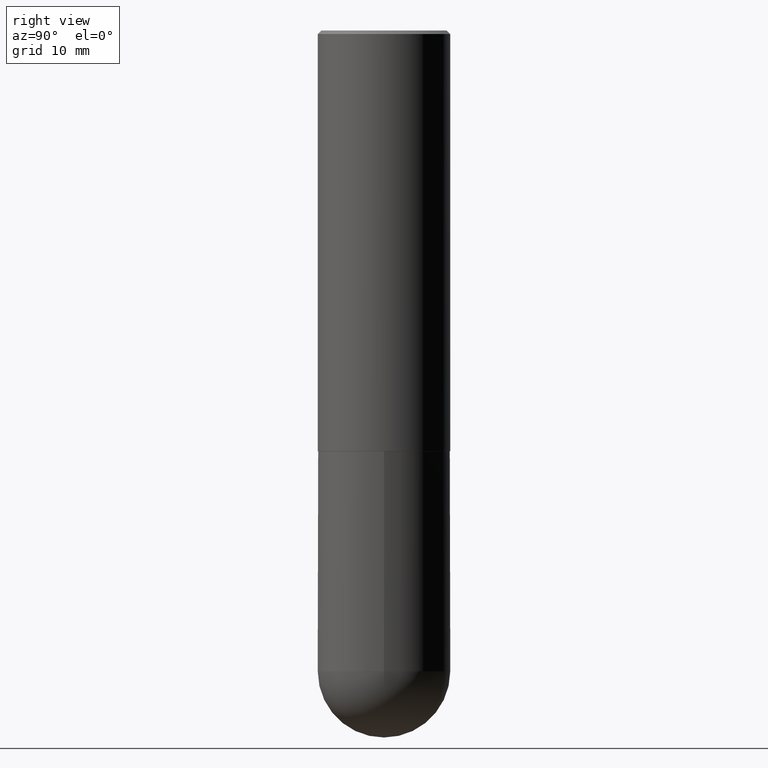
[diagram: clean part render]
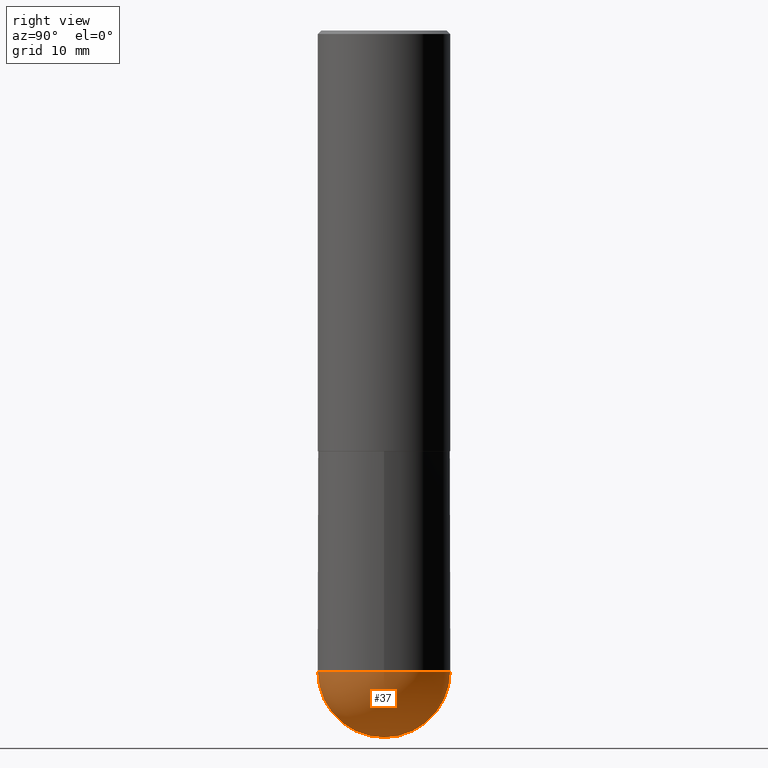
[diagram: same view with one face highlighted and labeled with its STEP entity id]
A machine part, right view. The second image highlights one B-rep face of the part: STEP entity #37.
In plain terms, the highlighted spherical surface has radius 9.525 mm.
Its self-contained STEP definition (entity closure, byte-faithful):
#11 = ORIENTED_EDGE ( 'NONE', *, *, #111, .F. ) ;
#13 = CIRCLE ( 'NONE', #322, 0.3750000000000001110 ) ;
#26 = DIRECTION ( 'NONE',  ( -7.105427357600999492E-15, -1.000000000000000000, 0.000000000000000000 ) ) ;
#28 = AXIS2_PLACEMENT_3D ( 'NONE', #184, #29, #26 ) ;
#29 = DIRECTION ( 'NONE',  ( -1.000000000000000000, 7.105427357601001070E-15, -4.926315508542082329E-29 ) ) ;
#33 = CARTESIAN_POINT ( 'NONE',  ( 9.466789814748773816E-29, -1.441714559602862136E-14, -4.000000000000000000 ) ) ;
#37 = ADVANCED_FACE ( 'NONE', ( #114 ), #384, .T. ) ;
#44 = ORIENTED_EDGE ( 'NONE', *, *, #210, .T. ) ;
#45 = EDGE_CURVE ( 'NONE', #62, #274, #204, .T. ) ;
#62 = VERTEX_POINT ( 'NONE', #80 ) ;
#65 = AXIS2_PLACEMENT_3D ( 'NONE', #290, #336, #196 ) ;
#69 = DIRECTION ( 'NONE',  ( -2.445468806185136597E-29, 3.491481338843145583E-15, 1.000000000000000000 ) ) ;
#75 = CARTESIAN_POINT ( 'NONE',  ( 8.533704644507233916E-29, -1.313080222144645289E-14, -3.624999999999999556 ) ) ;
#80 = CARTESIAN_POINT ( 'NONE',  ( 0.3750000000000001110, -1.310178372400889468E-14, -3.624999999999999556 ) ) ;
#83 = DIRECTION ( 'NONE',  ( -2.445468806185136597E-29, 3.491481338843145583E-15, 1.000000000000000000 ) ) ;
#106 = CARTESIAN_POINT ( 'NONE',  ( 2.618611004132438763E-15, 0.3749999999999873990, -3.625000000000000888 ) ) ;
#111 = EDGE_CURVE ( 'NONE', #367, #62, #13, .T. ) ;
#112 = CARTESIAN_POINT ( 'NONE',  ( 8.864824422421120163E-29, -1.265661985330640259E-14, -3.624999999999999556 ) ) ;
#114 = FACE_OUTER_BOUND ( 'NONE', #395, .T. ) ;
#123 = ORIENTED_EDGE ( 'NONE', *, *, #45, .F. ) ;
#163 = VERTEX_POINT ( 'NONE', #33 ) ;
#184 = CARTESIAN_POINT ( 'NONE',  ( 8.533704644507233916E-29, -1.313080222144645289E-14, -3.624999999999999556 ) ) ;
#196 = DIRECTION ( 'NONE',  ( 6.982962677686265922E-15, 1.000000000000000000, 0.000000000000000000 ) ) ;
#204 = CIRCLE ( 'NONE', #269, 0.3750000000000001110 ) ;
#210 = EDGE_CURVE ( 'NONE', #163, #274, #227, .T. ) ;
#227 = CIRCLE ( 'NONE', #65, 0.3750000000000003886 ) ;
#235 = DIRECTION ( 'NONE',  ( 1.000000000000000000, -6.982962677686265922E-15, 0.000000000000000000 ) ) ;
#246 = DIRECTION ( 'NONE',  ( 1.000000000000000000, -6.982962677686265922E-15, 0.000000000000000000 ) ) ;
#248 = CARTESIAN_POINT ( 'NONE',  ( 8.864824422421120163E-29, -1.265661985330640259E-14, -3.624999999999999556 ) ) ;
#259 = AXIS2_PLACEMENT_3D ( 'NONE', #75, #408, #375 ) ;
#260 = ORIENTED_EDGE ( 'NONE', *, *, #386, .F. ) ;
#269 = AXIS2_PLACEMENT_3D ( 'NONE', #248, #69, #246 ) ;
#271 = CIRCLE ( 'NONE', #28, 0.3750000000000003886 ) ;
#274 = VERTEX_POINT ( 'NONE', #106 ) ;
#290 = CARTESIAN_POINT ( 'NONE',  ( 8.533704644507233916E-29, -1.313080222144645289E-14, -3.624999999999999556 ) ) ;
#309 = CARTESIAN_POINT ( 'NONE',  ( -2.664535259100290106E-15, -0.3750000000000131006, -3.624999999999998668 ) ) ;
#322 = AXIS2_PLACEMENT_3D ( 'NONE', #112, #83, #235 ) ;
#336 = DIRECTION ( 'NONE',  ( 1.000000000000000000, -6.982962677686265922E-15, 4.883557194083112340E-29 ) ) ;
#367 = VERTEX_POINT ( 'NONE', #309 ) ;
#375 = DIRECTION ( 'NONE',  ( 6.982962677686266711E-15, 1.000000000000000000, -2.913971193241878005E-15 ) ) ;
#384 = SPHERICAL_SURFACE ( 'NONE', #259, 0.3750000000000003886 ) ;
#386 = EDGE_CURVE ( 'NONE', #163, #367, #271, .T. ) ;
#395 = EDGE_LOOP ( 'NONE', ( #260, #44, #123, #11 ) ) ;
#408 = DIRECTION ( 'NONE',  ( -1.000000000000000000, 6.982962677686266711E-15, -4.883557194083113462E-29 ) ) ;